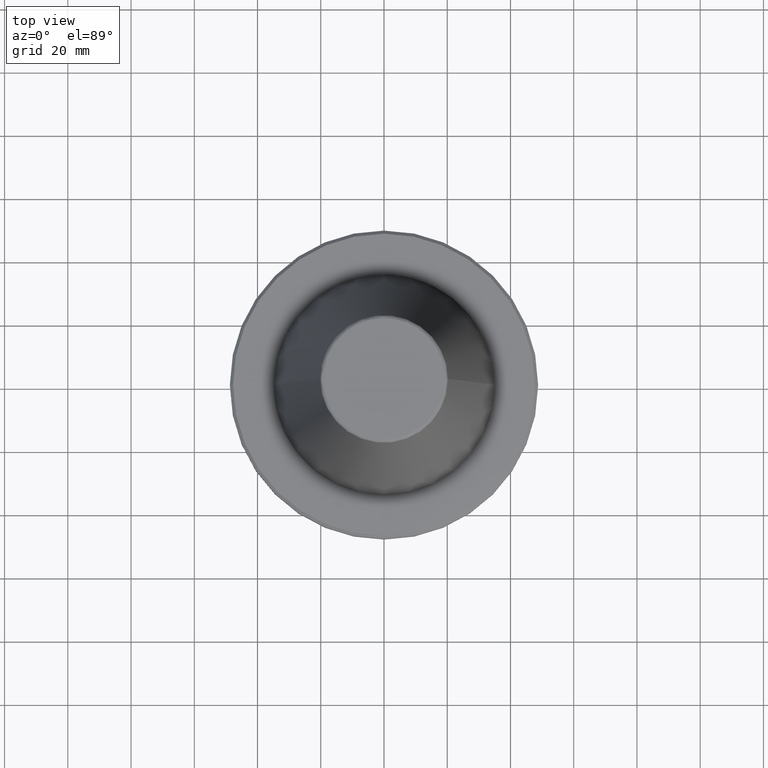
[diagram: clean part render]
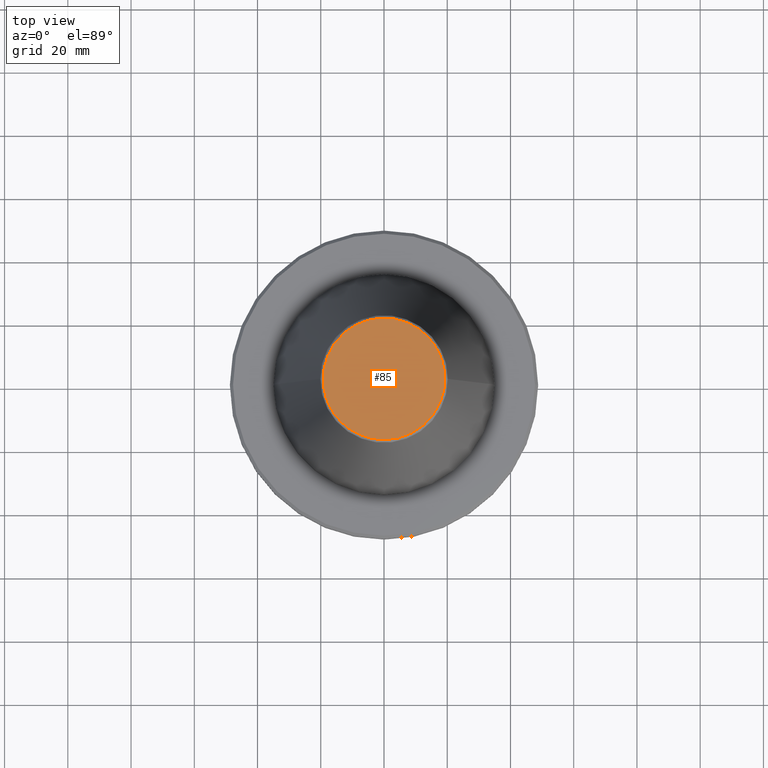
[diagram: same view with one face highlighted and labeled with its STEP entity id]
A machine part, top view. The second image highlights one B-rep face of the part: STEP entity #85.
In plain terms, the highlighted planar face has unit normal (0, 0, 1).
Its self-contained STEP definition (entity closure, byte-faithful):
#85 = ADVANCED_FACE ( 'NONE', ( #771 ), #2341, .T. ) ;
#237 = EDGE_CURVE ( 'NONE', #1612, #441, #1261, .T. ) ;
#349 = CARTESIAN_POINT ( 'NONE',  ( 19.22157500054540000, 0.0000000000000000000, 101.7499999999999900 ) ) ;
#351 = CARTESIAN_POINT ( 'NONE',  ( 19.22157500054540000, 38.44315000109079300, 101.7500000000000000 ) ) ;
#354 = CARTESIAN_POINT ( 'NONE',  ( -19.22157500054540000, 2.378200593091452200E-015, 101.7499999999999900 ) ) ;
#363 = CARTESIAN_POINT ( 'NONE',  ( -19.22157500054539600, 38.44315000109079300, 101.7500000000000000 ) ) ;
#389 = AXIS2_PLACEMENT_3D ( 'NONE', #2076, #1816, #1777 ) ;
#441 = VERTEX_POINT ( 'NONE', #1316 ) ;
#771 = FACE_OUTER_BOUND ( 'NONE', #820, .T. ) ;
#820 = EDGE_LOOP ( 'NONE', ( #2107, #1869 ) ) ;
#915 =( BOUNDED_CURVE ( )  B_SPLINE_CURVE ( 3, ( #354, #363, #351, #349 ),
 .UNSPECIFIED., .F., .F. ) 
 B_SPLINE_CURVE_WITH_KNOTS ( ( 4, 4 ),
 ( 0.0000000000000000000, 1.000000000000000000 ),
 .UNSPECIFIED. ) 
 CURVE ( )  GEOMETRIC_REPRESENTATION_ITEM ( )  RATIONAL_B_SPLINE_CURVE ( ( 1.000000000000000000, 0.3333333333333333700, 0.3333333333333333700, 1.000000000000000000 ) ) 
 REPRESENTATION_ITEM ( '' )  );
#1046 = EDGE_CURVE ( 'NONE', #441, #1612, #915, .T. ) ;
#1261 =( BOUNDED_CURVE ( )  B_SPLINE_CURVE ( 3, ( #1559, #1766, #1566, #1557 ),
 .UNSPECIFIED., .F., .F. ) 
 B_SPLINE_CURVE_WITH_KNOTS ( ( 4, 4 ),
 ( 0.0000000000000000000, 1.000000000000000000 ),
 .UNSPECIFIED. ) 
 CURVE ( )  GEOMETRIC_REPRESENTATION_ITEM ( )  RATIONAL_B_SPLINE_CURVE ( ( 1.000000000000000000, 0.3333333333333333700, 0.3333333333333333700, 1.000000000000000000 ) ) 
 REPRESENTATION_ITEM ( '' )  );
#1316 = CARTESIAN_POINT ( 'NONE',  ( -19.22157500054540000, 2.378200593091452200E-015, 101.7499999999999900 ) ) ;
#1383 = CARTESIAN_POINT ( 'NONE',  ( 19.22157500054540000, 0.0000000000000000000, 101.7499999999999900 ) ) ;
#1557 = CARTESIAN_POINT ( 'NONE',  ( -19.22157500054540000, 2.378200593091452200E-015, 101.7499999999999900 ) ) ;
#1559 = CARTESIAN_POINT ( 'NONE',  ( 19.22157500054540000, 0.0000000000000000000, 101.7499999999999900 ) ) ;
#1566 = CARTESIAN_POINT ( 'NONE',  ( -19.22157500054540000, -38.44315000109079300, 101.7500000000000000 ) ) ;
#1612 = VERTEX_POINT ( 'NONE', #1383 ) ;
#1766 = CARTESIAN_POINT ( 'NONE',  ( 19.22157500054540000, -38.44315000109079300, 101.7500000000000000 ) ) ;
#1777 = DIRECTION ( 'NONE',  ( 1.000000000000000000, 0.0000000000000000000, -0.0000000000000000000 ) ) ;
#1816 = DIRECTION ( 'NONE',  ( 0.0000000000000000000, 0.0000000000000000000, 1.000000000000000000 ) ) ;
#1869 = ORIENTED_EDGE ( 'NONE', *, *, #237, .F. ) ;
#2076 = CARTESIAN_POINT ( 'NONE',  ( 0.0000000000000000000, 7.346249770921763000E-014, 101.7500000000000000 ) ) ;
#2107 = ORIENTED_EDGE ( 'NONE', *, *, #1046, .F. ) ;
#2341 = PLANE ( 'NONE',  #389 ) ;